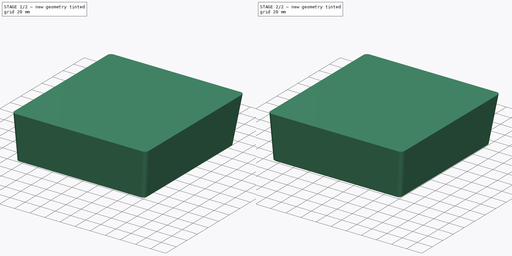
[diagram: build sequence overview — one tinted view per stage of 2, left to right]
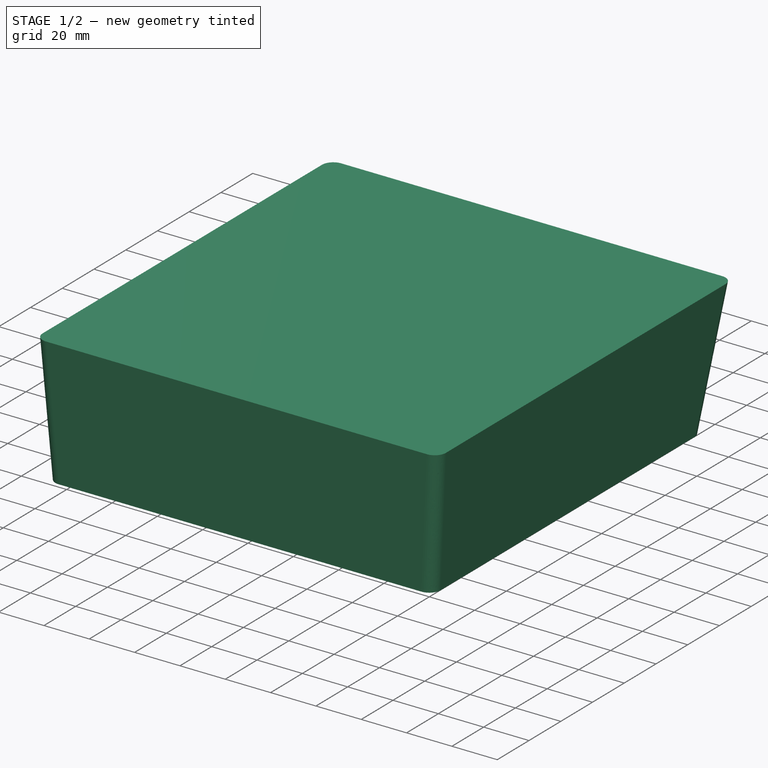
[diagram: stage 1 of 2 — iso view after this stage's code; geometry added in this stage tinted green]
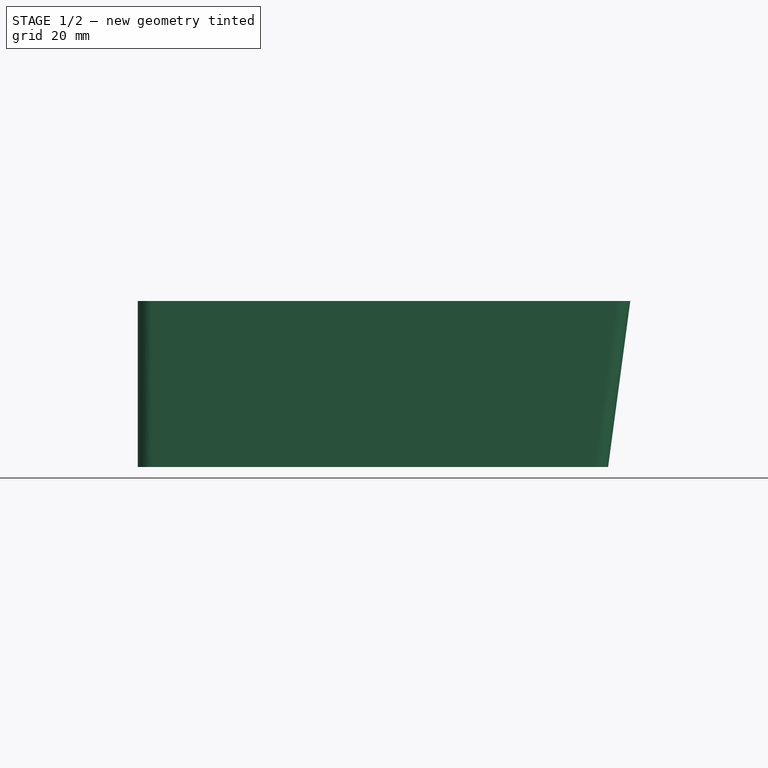
[diagram: stage 1 of 2 — front view after this stage's code; geometry added in this stage tinted green]
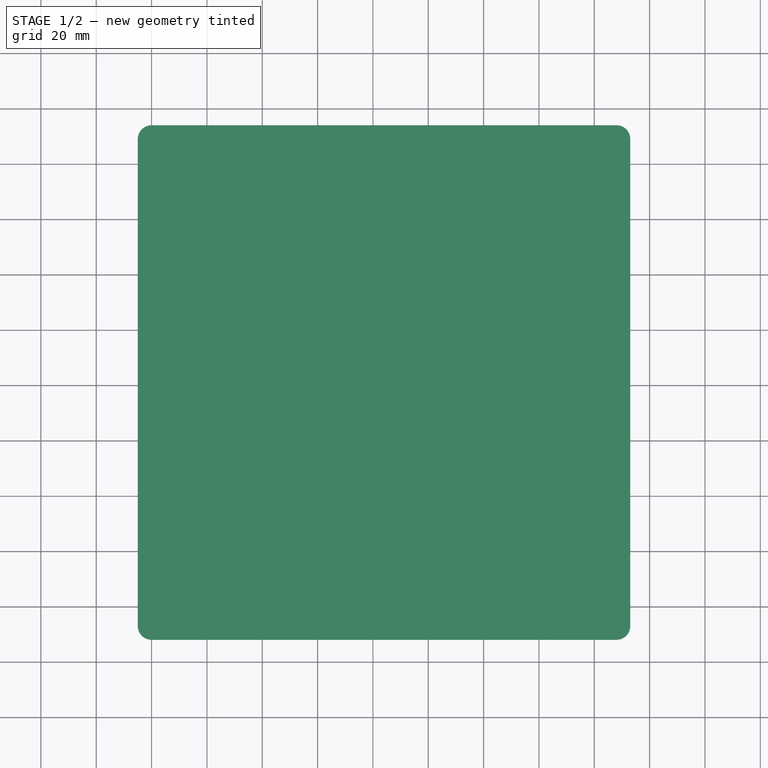
[diagram: stage 1 of 2 — top view after this stage's code; geometry added in this stage tinted green]
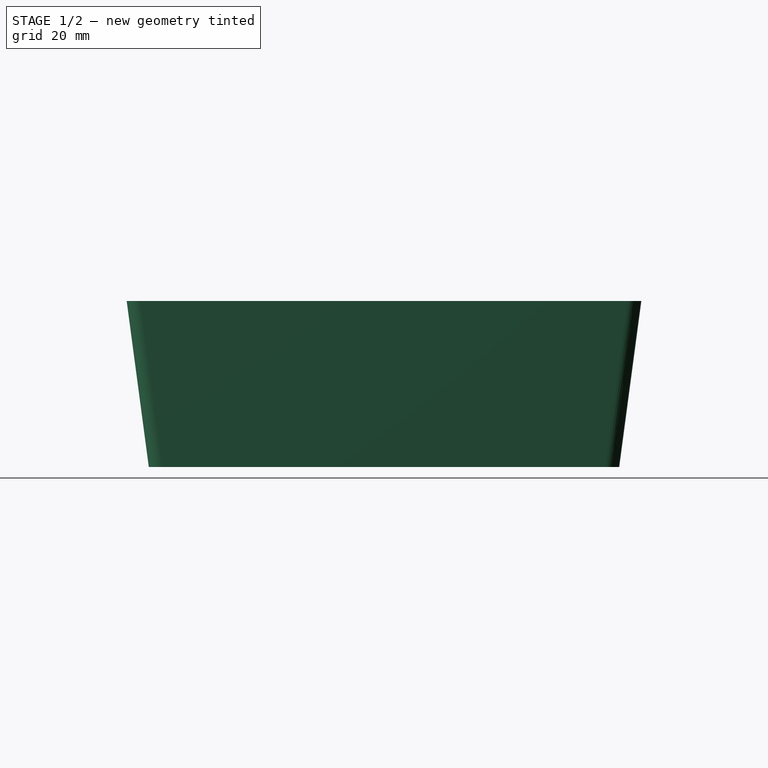
[diagram: stage 1 of 2 — right view after this stage's code; geometry added in this stage tinted green]
FCSTD DOCUMENT  (FreeCAD 0.20R28936 (Git))
Label: CatFountainBase
License: All rights reserved
LicenseURL: http://en.wikipedia.org/wiki/All_rights_reserved
objects: Sketcher::SketchObject×2, PartDesign::AdditiveLoft×1, PartDesign::Fillet×1, PartDesign::Chamfer×1, PartDesign::Body×1
note: 9 computed .brp shape members not serialized (recipe doc carries the construction recipe); baked Part::Feature solids carry a one-line shape summary decoded from their .brp

FEATURE [Sketcher::SketchObject] Sketch
  FullyConstrained = true
  MapMode = 5
  Support = -> [XY_Plane]
  sketch-geometry (4):
    g0: LineSegment StartX=-85 StartY=85 StartZ=0 EndX=85 EndY=85 EndZ=0
    g1: LineSegment StartX=85 StartY=85 StartZ=0 EndX=85 EndY=-85 EndZ=0
    g2: LineSegment StartX=85 StartY=-85 StartZ=0 EndX=-85 EndY=-85 EndZ=0
    g3: LineSegment StartX=-85 StartY=-85 StartZ=0 EndX=-85 EndY=85 EndZ=0
  constraints (11):
    c: Coincident(g0,g1)
    c: Coincident(g1,g2)
    c: Coincident(g2,g3)
    c: Coincident(g3,g0)
    c: Horizontal(g0)
    c: Horizontal(g2)
    c: Vertical(g1)
    c: Vertical(g3)
    c: Equal(g0,g3)
    c: Symmetric(g0,g1,g-1)
    c: DistanceX(g0,g0) = 170
FEATURE [Sketcher::SketchObject] Sketch001
  AttachmentOffset = pos=(0,0,60) rot=(0,0,1;0rad)
  ExternalGeometry = -> [Sketch]
  FullyConstrained = true
  MapMode = 5
  Placement = pos=(0,0,60) rot=(0,0,1;0rad)
  Support = -> [XY_Plane]
  sketch-geometry (7):
    g0: LineSegment StartX=-85 StartY=93 StartZ=0 EndX=93 EndY=93 EndZ=0
    g1: LineSegment StartX=93 StartY=93 StartZ=0 EndX=93 EndY=-93 EndZ=0
    g2: LineSegment StartX=93 StartY=-93 StartZ=0 EndX=-85 EndY=-93 EndZ=0
    g3: LineSegment StartX=-85 StartY=-93 StartZ=0 EndX=-85 EndY=93 EndZ=0
    g4: LineSegment StartX=85 StartY=85 StartZ=0 EndX=85 EndY=93 EndZ=0
    g5: LineSegment StartX=85 StartY=85 StartZ=0 EndX=93 EndY=85 EndZ=0
    g6: LineSegment StartX=85 StartY=-85 StartZ=0 EndX=85 EndY=-93 EndZ=0
  constraints (20):
    c: Coincident(g0,g1)
    c: Coincident(g1,g2)
    c: Coincident(g2,g3)
    c: Coincident(g3,g0)
    c: Horizontal(g0)
    c: Horizontal(g2)
    c: Vertical(g3)
    c: Symmetric(g0,g1,g-1)
    c: PointOnObject(g-3,g3)
    c: Coincident(g4,g-4)
    c: PointOnObject(g4,g0)
    c: Vertical(g4)
    c: Coincident(g5,g4)
    c: PointOnObject(g5,g1)
    c: Horizontal(g5)
    c: Coincident(g6,g-4)
    c: PointOnObject(g6,g2)
    c: Vertical(g6)
    c: Equal(g6,g5)
    c: DistanceX(g4,g0) = 8
FEATURE [PartDesign::AdditiveLoft] AdditiveLoft
  Closed = false
  Profile = -> Sketch
  Ruled = false
  Sections = -> [Sketch001]
FEATURE [PartDesign::Fillet] Fillet
  Base = -> AdditiveLoft [Edge12,Edge7,Edge11,Edge5]
  BaseFeature = -> AdditiveLoft
  Radius = 5
  SupportTransform = false
  UseAllEdges = false
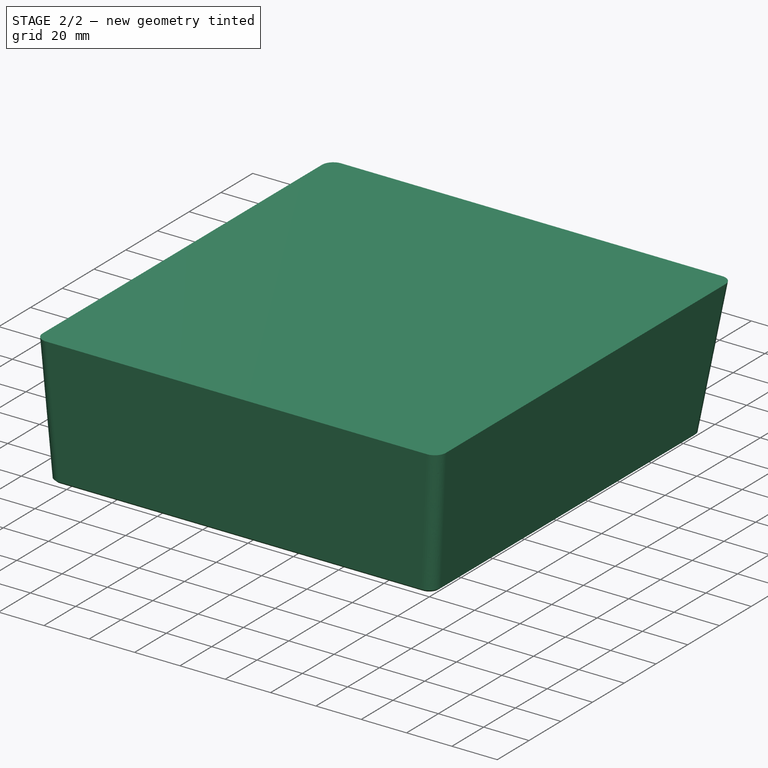
[diagram: stage 2 of 2 — iso view after this stage's code; geometry added in this stage tinted green]
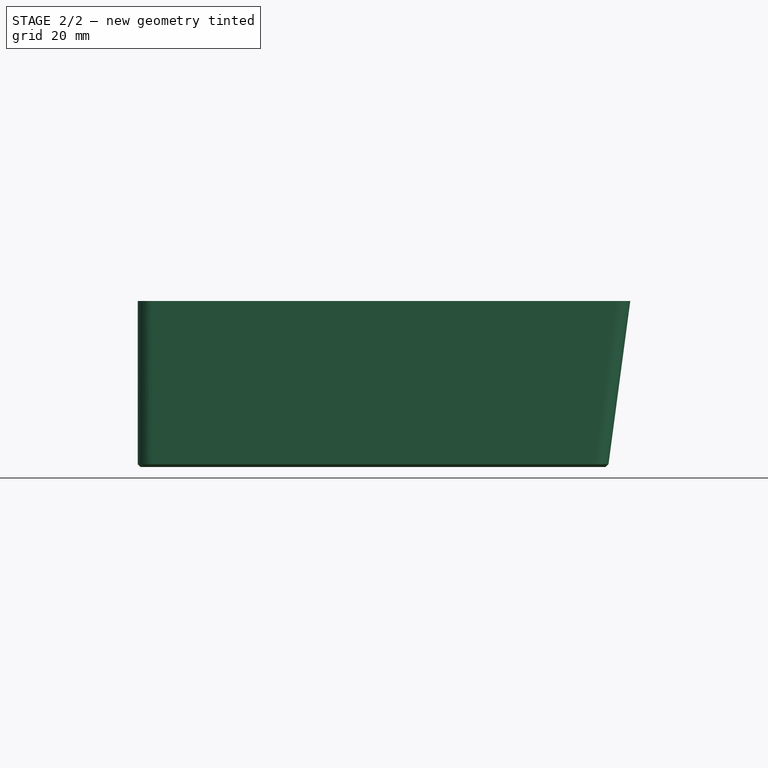
[diagram: stage 2 of 2 — front view after this stage's code; geometry added in this stage tinted green]
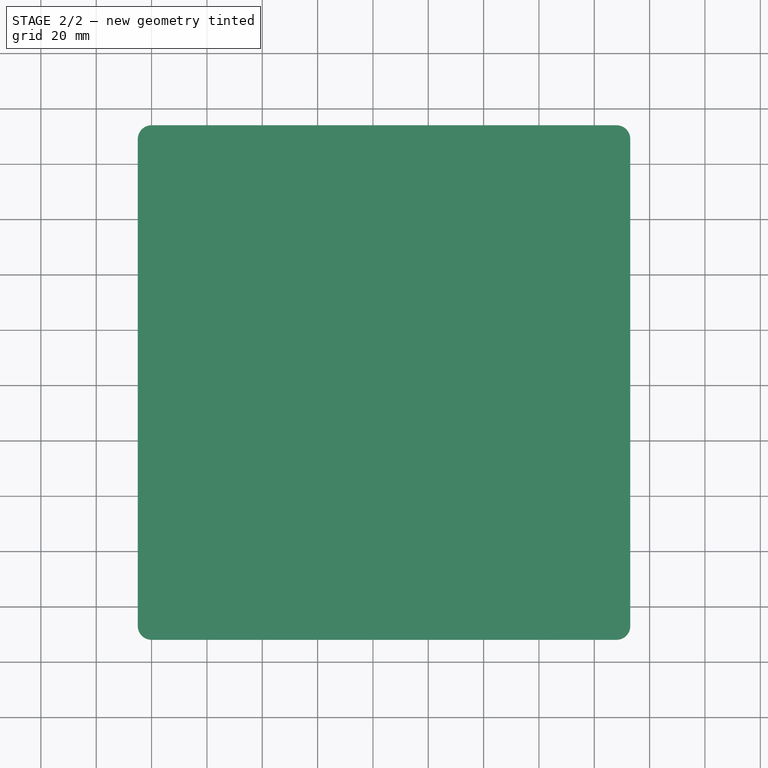
[diagram: stage 2 of 2 — top view after this stage's code; geometry added in this stage tinted green]
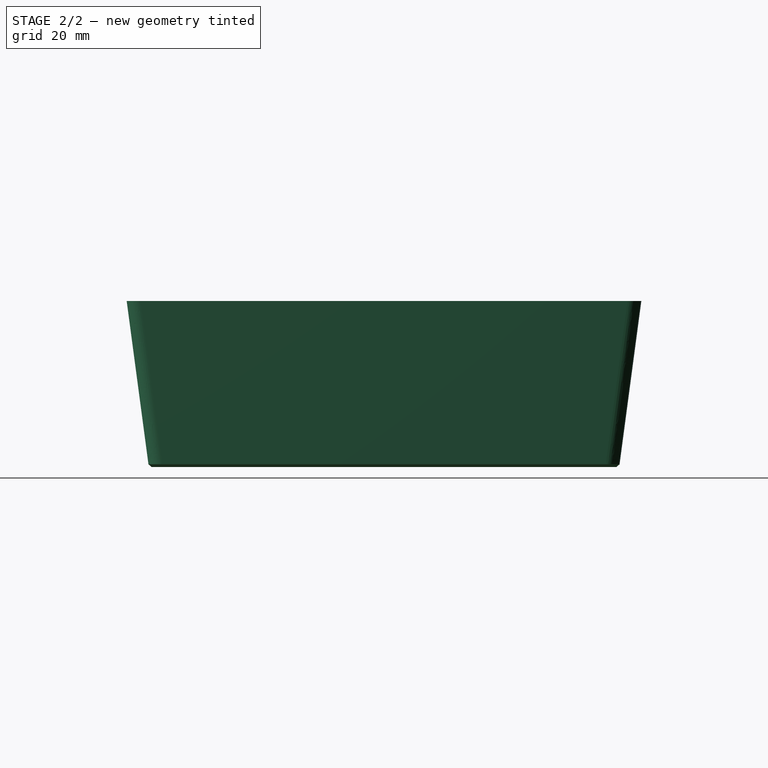
[diagram: stage 2 of 2 — right view after this stage's code; geometry added in this stage tinted green]
FEATURE [PartDesign::Chamfer] Chamfer
  Angle = 45
  Base = -> Fillet [Face1]
  BaseFeature = -> Fillet
  ChamferType = 0
  FlipDirection = false
  Size = 1
  Size2 = 1
  SupportTransform = false
  UseAllEdges = false
FEATURE [PartDesign::Body] Body
  Group = -> [Sketch,Sketch001,AdditiveLoft,Fillet,Chamfer]
  Origin = -> Origin
  Tip = -> Chamfer
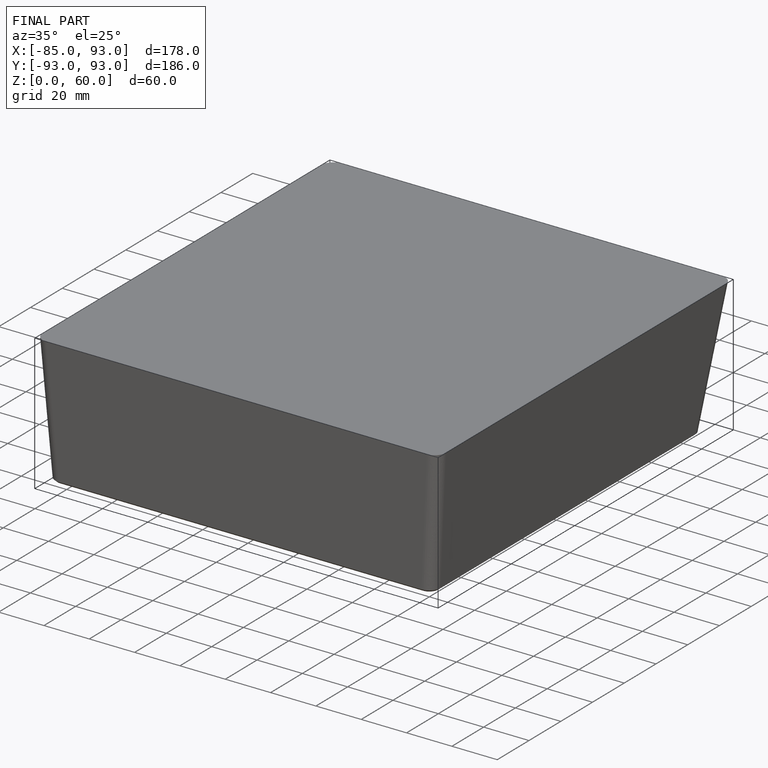
[diagram: finished part — iso view with bounding-box wireframe]
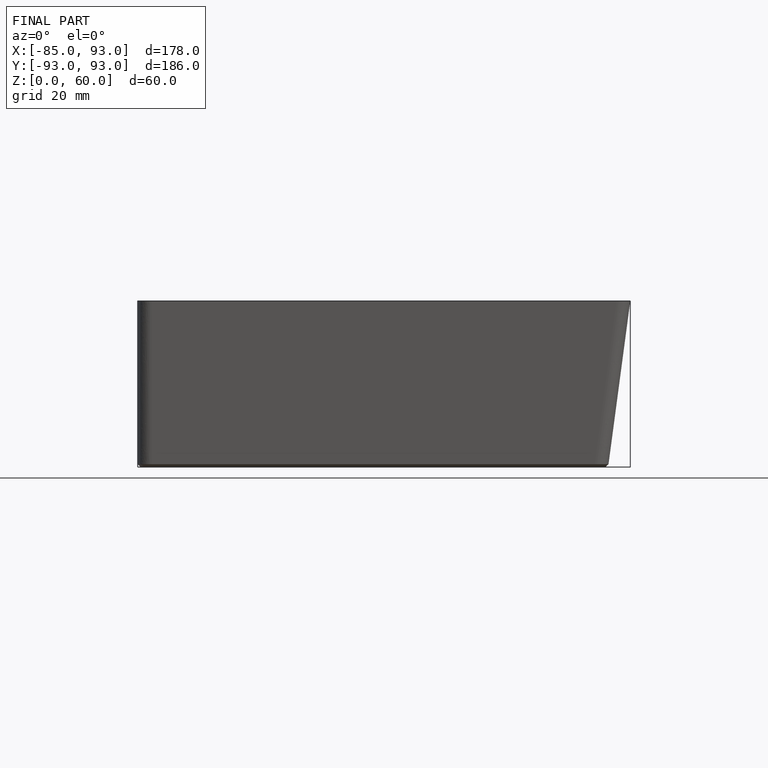
[diagram: finished part — front view with bounding-box wireframe]
